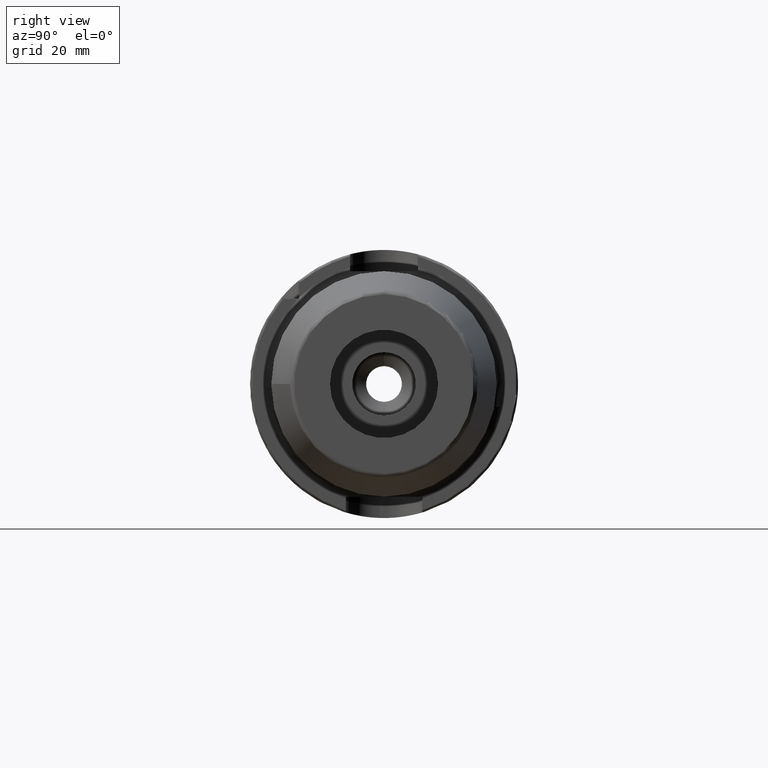
[diagram: clean part render]
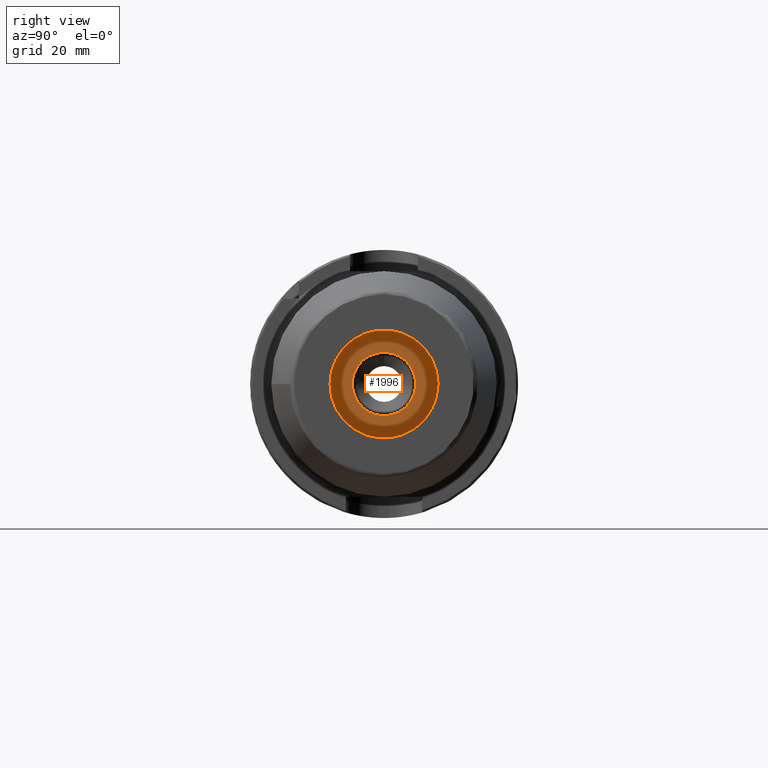
[diagram: same view with one face highlighted and labeled with its STEP entity id]
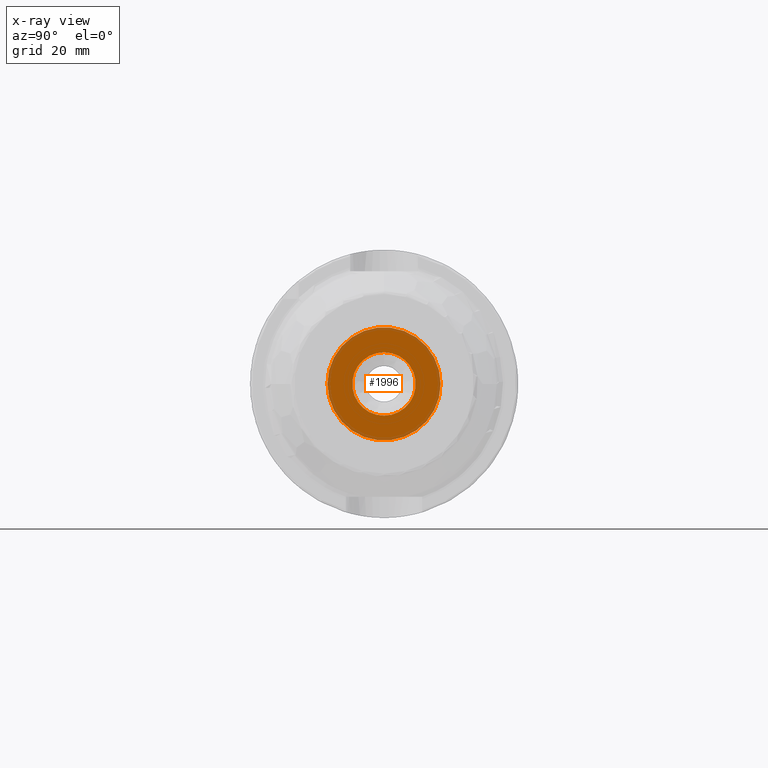
[diagram: x-ray of the same camera — body ghosted, the highlighted face saturated]
A machine part, right view. The second image highlights one B-rep face of the part: STEP entity #1996.
The next image is the same camera in x-ray: the body ghosted, the highlighted face saturated — about 13% of this face is hidden behind the body in this view.
In plain terms, the highlighted planar face has unit normal (1, 0, 0).
Its self-contained STEP definition (entity closure, byte-faithful):
#109=FACE_BOUND('',#354,.T.);
#121=PLANE('',#2159);
#232=FACE_OUTER_BOUND('',#353,.T.);
#353=EDGE_LOOP('',(#1389));
#354=EDGE_LOOP('',(#1390));
#678=CIRCLE('',#2130,7.458734);
#695=CIRCLE('',#2158,13.3);
#804=VERTEX_POINT('',#2994);
#830=VERTEX_POINT('',#3108);
#1012=EDGE_CURVE('',#804,#804,#678,.T.);
#1048=EDGE_CURVE('',#830,#830,#695,.T.);
#1389=ORIENTED_EDGE('',*,*,#1048,.T.);
#1390=ORIENTED_EDGE('',*,*,#1012,.T.);
#1996=ADVANCED_FACE('',(#232,#109),#121,.T.);
#2130=AXIS2_PLACEMENT_3D('',#2995,#2389,#2390);
#2158=AXIS2_PLACEMENT_3D('',#3110,#2454,#2455);
#2159=AXIS2_PLACEMENT_3D('',#3111,#2456,#2457);
#2389=DIRECTION('center_axis',(-1.,0.,0.));
#2390=DIRECTION('ref_axis',(0.,0.,-1.));
#2454=DIRECTION('center_axis',(1.,0.,0.));
#2455=DIRECTION('ref_axis',(0.,0.,-1.));
#2456=DIRECTION('center_axis',(1.,0.,0.));
#2457=DIRECTION('ref_axis',(0.,0.,-1.));
#2994=CARTESIAN_POINT('',(55.,-9.13431471879154E-16,7.458734));
#2995=CARTESIAN_POINT('Origin',(55.,0.,0.));
#3108=CARTESIAN_POINT('',(55.,-13.3,-1.62878024286598E-15));
#3110=CARTESIAN_POINT('Origin',(55.,0.,0.));
#3111=CARTESIAN_POINT('Origin',(55.,-9.43689570931383E-15,0.));